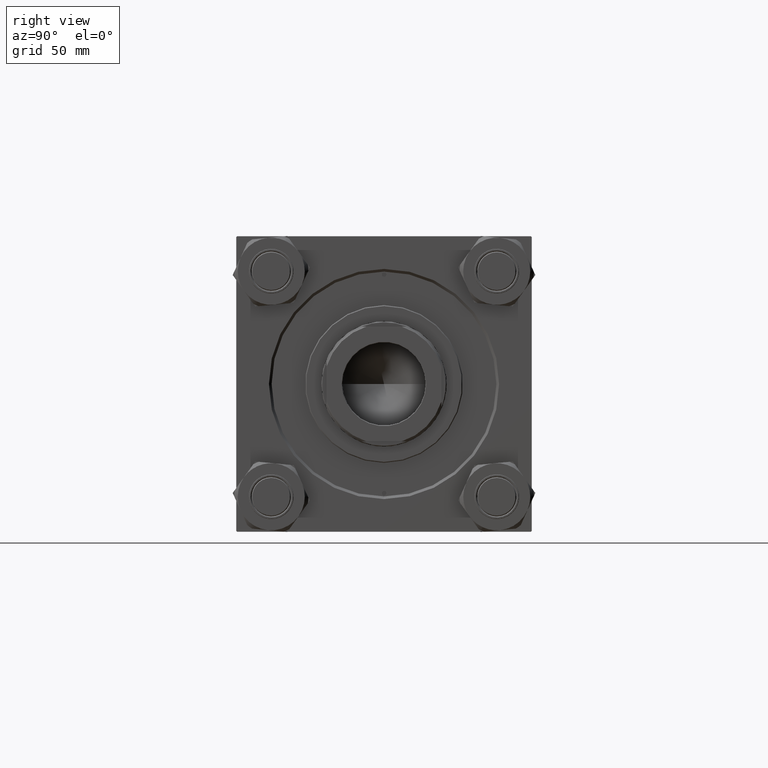
[diagram: clean part render]
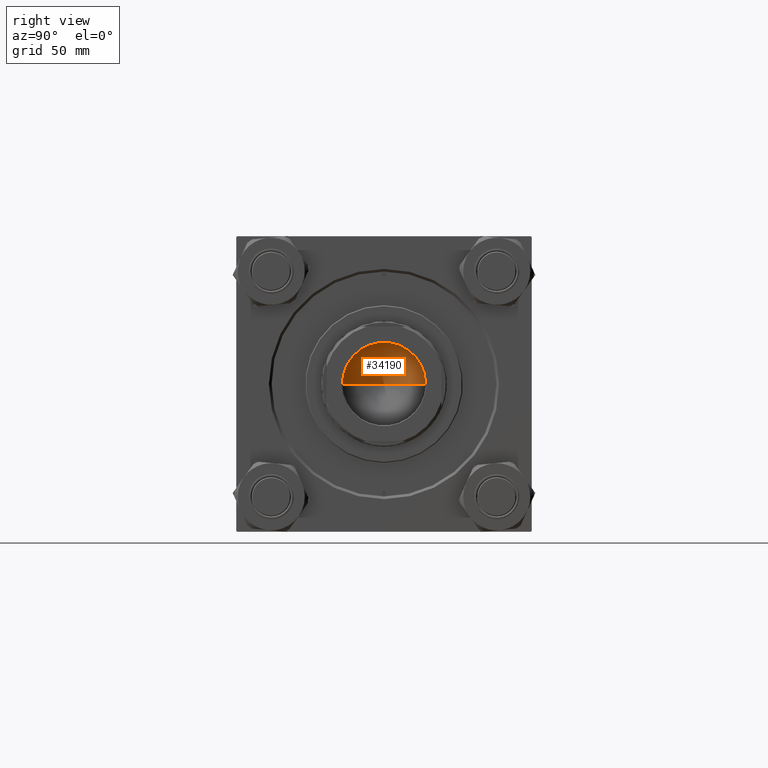
[diagram: same view with one face highlighted and labeled with its STEP entity id]
A machine part, right view. The second image highlights one B-rep face of the part: STEP entity #34190.
In plain terms, the highlighted conical surface has half-angle 59 deg.
Its self-contained STEP definition (entity closure, byte-faithful):
#1924 = ORIENTED_EDGE ( 'NONE', *, *, #32343, .F. ) ;
#6328 = CARTESIAN_POINT ( 'NONE',  ( 0.000000000000000000, 0.000000000000000000, 128.9999999999999716 ) ) ;
#8203 = ORIENTED_EDGE ( 'NONE', *, *, #17718, .T. ) ;
#9407 = DIRECTION ( 'NONE',  ( -0.000000000000000000, -0.000000000000000000, 1.000000000000000000 ) ) ;
#11192 = ORIENTED_EDGE ( 'NONE', *, *, #47935, .T. ) ;
#11426 = DIRECTION ( 'NONE',  ( 0.8571673007021117785, 0.000000000000000000, 0.5150380749100550437 ) ) ;
#11748 = CARTESIAN_POINT ( 'NONE',  ( -1.584115414415908206E-14, 0.000000000000000000, 115.0299906076091787 ) ) ;
#14341 = CARTESIAN_POINT ( 'NONE',  ( -23.24999999999998579, 2.847303808017594561E-15, 128.9999999999999716 ) ) ;
#15188 = VERTEX_POINT ( 'NONE', #11748 ) ;
#15632 = CARTESIAN_POINT ( 'NONE',  ( 23.24999999999998579, 0.000000000000000000, 128.9999999999999716 ) ) ;
#16984 = EDGE_LOOP ( 'NONE', ( #1924, #11192, #8203 ) ) ;
#17718 = EDGE_CURVE ( 'NONE', #25299, #26498, #19873, .T. ) ;
#17906 = DIRECTION ( 'NONE',  ( -0.8571673007021117785, 1.049727191138617956E-16, 0.5150380749100550437 ) ) ;
#19873 = CIRCLE ( 'NONE', #31286, 23.24999999999998579 ) ;
#20676 = DIRECTION ( 'NONE',  ( 1.000000000000000000, 0.000000000000000000, 0.000000000000000000 ) ) ;
#25299 = VERTEX_POINT ( 'NONE', #36635 ) ;
#25979 = DIRECTION ( 'NONE',  ( 1.000000000000000000, 0.000000000000000000, 0.000000000000000000 ) ) ;
#25995 = LINE ( 'NONE', #45875, #47116 ) ;
#26498 = VERTEX_POINT ( 'NONE', #15632 ) ;
#29272 = AXIS2_PLACEMENT_3D ( 'NONE', #32165, #47719, #20676 ) ;
#30438 = VECTOR ( 'NONE', #17906, 1000.000000000000000 ) ;
#31286 = AXIS2_PLACEMENT_3D ( 'NONE', #6328, #9407, #25979 ) ;
#32165 = CARTESIAN_POINT ( 'NONE',  ( 0.000000000000000000, 0.000000000000000000, 128.9999999999999716 ) ) ;
#32343 = EDGE_CURVE ( 'NONE', #15188, #26498, #25995, .T. ) ;
#33351 = CONICAL_SURFACE ( 'NONE', #29272, 23.24999999999998579, 1.029744258676653423 ) ;
#34190 = ADVANCED_FACE ( 'NONE', ( #39798 ), #33351, .F. ) ;
#36635 = CARTESIAN_POINT ( 'NONE',  ( -23.24999999999998579, 2.847303808017594561E-15, 128.9999999999999716 ) ) ;
#39798 = FACE_OUTER_BOUND ( 'NONE', #16984, .T. ) ;
#45875 = CARTESIAN_POINT ( 'NONE',  ( 23.24999999999998579, 0.000000000000000000, 128.9999999999999716 ) ) ;
#47116 = VECTOR ( 'NONE', #11426, 1000.000000000000000 ) ;
#47719 = DIRECTION ( 'NONE',  ( -0.000000000000000000, -0.000000000000000000, 1.000000000000000000 ) ) ;
#47935 = EDGE_CURVE ( 'NONE', #15188, #25299, #49308, .T. ) ;
#49308 = LINE ( 'NONE', #14341, #30438 ) ;